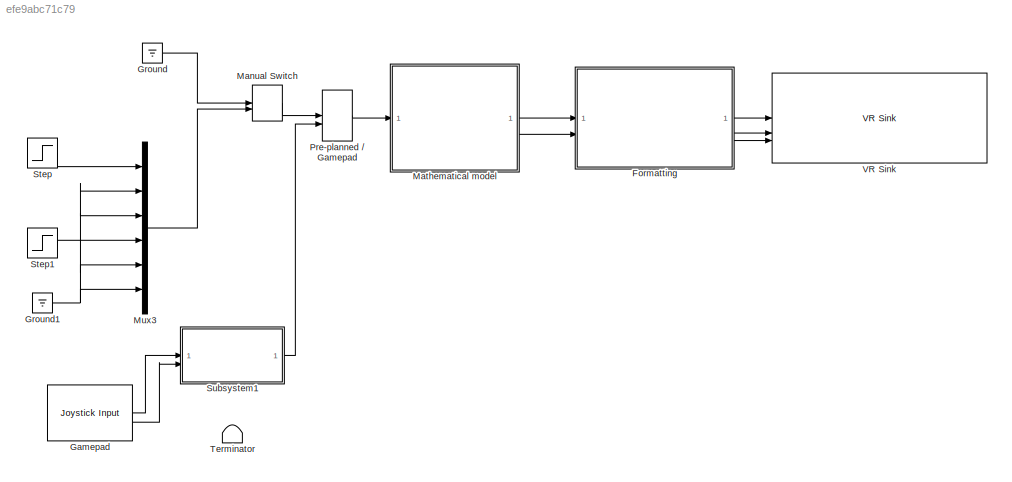
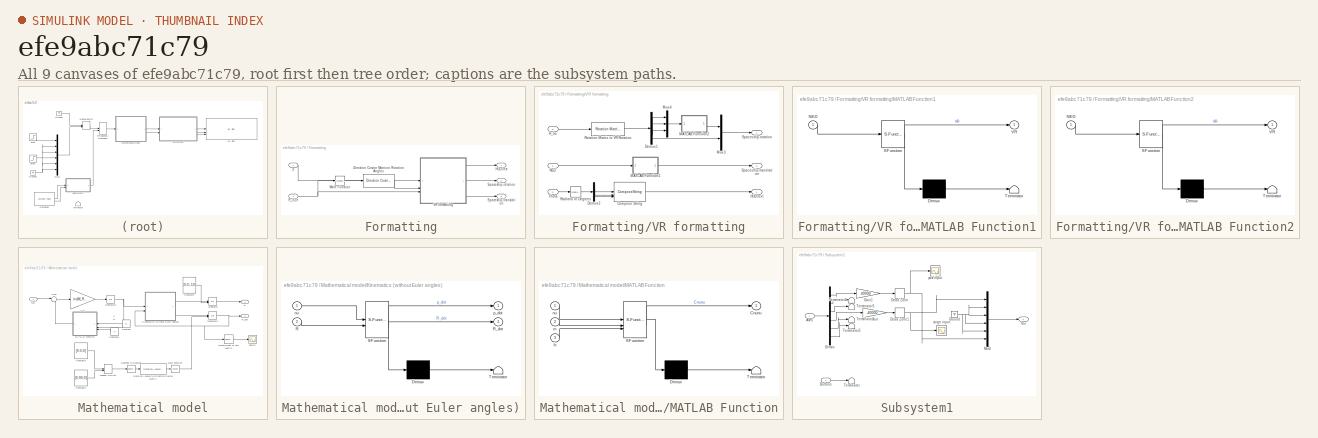
[diagram: thumbnail index - all 9 canvases of the model, root first then tree order]
MODEL slx_efe9abc71c79
KIND model
CONFIG AbsTol = auto
CONFIG EnableMultiTasking = on
CONFIG FixedStep = auto
CONFIG MaxStep = auto
CONFIG MinStep = auto
CONFIG RelTol = 1e-3
CONFIG SampleTimeConstraint = Unconstrained
CONFIG SolverName = ode45
CONFIG StartTime = 0.0
CONFIG StopTime = 120
BLOCK [SubSystem] Formatting
BLOCK [Reference] Formatting/Direction Cosine Matrix to Rotation Angles  REF=sharedtransform/Direction Cosine Matrix
to Rotation Angles
  AttributesFormatString = Rotation Order: %<rotationOrder>
  SourceBlock = sharedtransform/Direction Cosine Matrix\nto Rotation Angles
  SourceType = DCM2Ang
BLOCK [Outport] Formatting/HUD.text
BLOCK [Math] Formatting/Math Function
  Operator = transpose
BLOCK [Inport] Formatting/R_b2e
  Port = 2
BLOCK [Outport] Formatting/Spaceship.rotation
  Port = 2
BLOCK [Outport] Formatting/Spaceship.translation
  Port = 3
BLOCK [SubSystem] Formatting/VR formatting
BLOCK [ComposeString] Formatting/VR formatting/Compose String
  Format = 'Roll    : %7.2f deg\nPitch   : %7.2f deg\nYaw     : %7.2f deg'
BLOCK [Demux] Formatting/VR formatting/Demux1
BLOCK [Demux] Formatting/VR formatting/Demux2
  Outputs = 3
BLOCK [Outport] Formatting/VR formatting/HUD.text
BLOCK [SubSystem] Formatting/VR formatting/MATLAB Function1
  ErrorFcn = Stateflow.Translate.translate
  PermitHierarchicalResolution = ExplicitOnly
  SFBlockType = MATLAB Function
  TreatAsAtomicUnit = on
BLOCK [Demux] Formatting/VR formatting/MATLAB Function1/ Demux 
  Outputs = 1
BLOCK [S-Function] Formatting/VR formatting/MATLAB Function1/ SFunction 
  EnableBusSupport = on
  FunctionName = sf_sfun
  PortCounts = [1 2]
  SFcnIsStateOwnerBlock = off
  SFunctionDeploymentMode = off
  Tag = Stateflow S-Function 5
BLOCK [Terminator] Formatting/VR formatting/MATLAB Function1/ Terminator 
BLOCK [Inport] Formatting/VR formatting/MATLAB Function1/NED
BLOCK [Outport] Formatting/VR formatting/MATLAB Function1/VR
BLOCK [SubSystem] Formatting/VR formatting/MATLAB Function2
  ErrorFcn = Stateflow.Translate.translate
  PermitHierarchicalResolution = ExplicitOnly
  SFBlockType = MATLAB Function
  TreatAsAtomicUnit = on
BLOCK [Demux] Formatting/VR formatting/MATLAB Function2/ Demux 
  Outputs = 1
BLOCK [S-Function] Formatting/VR formatting/MATLAB Function2/ SFunction 
  EnableBusSupport = on
  FunctionName = sf_sfun
  PortCounts = [1 2]
  SFcnIsStateOwnerBlock = off
  SFunctionDeploymentMode = off
  Tag = Stateflow S-Function 6
BLOCK [Terminator] Formatting/VR formatting/MATLAB Function2/ Terminator 
BLOCK [Inport] Formatting/VR formatting/MATLAB Function2/NED
BLOCK [Outport] Formatting/VR formatting/MATLAB Function2/VR
BLOCK [Mux] Formatting/VR formatting/Mux3
  DisplayOption = bar
  Inputs = 2
BLOCK [Mux] Formatting/VR formatting/Mux4
  DisplayOption = bar
  Inputs = 3
BLOCK [Inport] Formatting/VR formatting/NED
BLOCK [Inport] Formatting/VR formatting/R_be
  Port = 3
BLOCK [Reference] Formatting/VR formatting/Radians to Degrees  REF=simulink_extras/Transformations/Radians
to Degrees
  SourceBlock = simulink_extras/Transformations/Radians\nto Degrees
  SourceType = RadiansToDegrees
BLOCK [Reference] Formatting/VR formatting/Rotation Matrix to VR Rotation  REF=vrlib/Utilities/Rotation Matrix
to VR Rotation
  SourceBlock = vrlib/Utilities/Rotation Matrix\nto VR Rotation
  SourceType = Rotation Matrix to VR Rotation
BLOCK [Outport] Formatting/VR formatting/Spaceship.rotation
  Port = 2
BLOCK [Outport] Formatting/VR formatting/Spaceship.translation
  Port = 3
BLOCK [Inport] Formatting/VR formatting/Theta
  Port = 2
BLOCK [Inport] Formatting/p
BLOCK [Reference] Gamepad  REF=vrlib/Joystick Input
  Commented = on
  SourceBlock = vrlib/Joystick Input
  SourceType = Joystick Input
BLOCK [Ground] Ground
BLOCK [Ground] Ground1
BLOCK [ManualSwitch] Manual Switch
  CurrentSetting = 0
  NameLocation = left
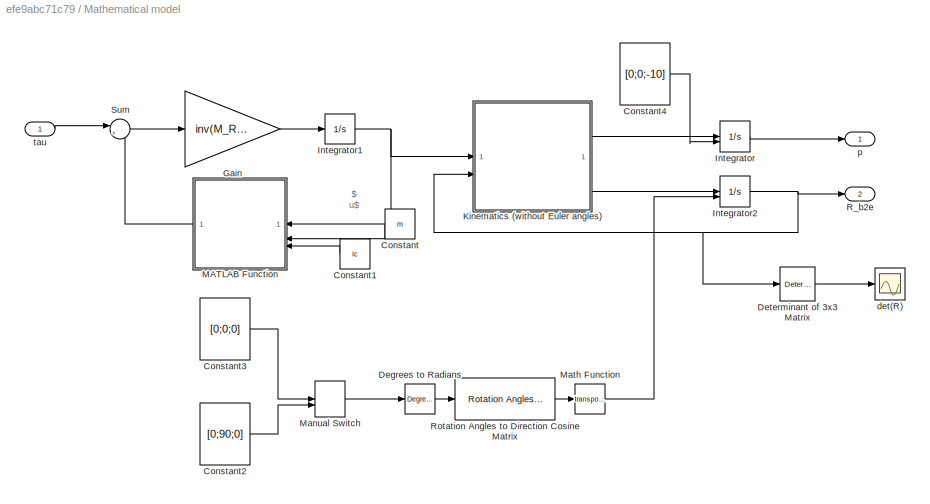
BLOCK [SubSystem] Mathematical model
BLOCK [Constant] Mathematical model/Constant
  Value = m
BLOCK [Constant] Mathematical model/Constant1
  Value = Ic
  VectorParams1D = off
BLOCK [Constant] Mathematical model/Constant2
  Value = [0;90;0]
  VectorParams1D = off
BLOCK [Constant] Mathematical model/Constant3
  Value = [0;0;0]
  VectorParams1D = off
BLOCK [Constant] Mathematical model/Constant4
  Value = [0;0;-10]
  VectorParams1D = off
BLOCK [Reference] Mathematical model/Degrees to Radians  REF=simulink_extras/Transformations/Degrees to
Radians
  SourceBlock = simulink_extras/Transformations/Degrees to\nRadians
  SourceType = DegreesToRadians
BLOCK [Reference] Mathematical model/Determinant of 3x3 Matrix  REF=sharedutil/Determinant of
3x3 Matrix
  LibrarySourceBlock = aerolibutil/Determinant of\n3x3 Matrix
  SourceBlock = sharedutil/Determinant of\n3x3 Matrix
  SourceType = Determinant of 3x3 Matrix
BLOCK [Gain] Mathematical model/Gain
  Gain = inv(M_RB)
  Multiplication = Matrix(K*u) (u vector)
BLOCK [Integrator] Mathematical model/Integrator
  InitialCondition = [0;0;-10]
  InitialConditionSource = external
BLOCK [Integrator] Mathematical model/Integrator1
  InitialCondition = [0;0;0;0;0;0]
BLOCK [Integrator] Mathematical model/Integrator2
  InitialCondition = [0;0;-10;0;pi/2;0]
  InitialConditionSource = external
BLOCK [SubSystem] Mathematical model/Kinematics (without Euler angles)
  ErrorFcn = Stateflow.Translate.translate
  PermitHierarchicalResolution = ExplicitOnly
  SFBlockType = MATLAB Function
  TreatAsAtomicUnit = on
BLOCK [Demux] Mathematical model/Kinematics (without Euler angles)/ Demux 
  Outputs = 1
BLOCK [S-Function] Mathematical model/Kinematics (without Euler angles)/ SFunction 
  EnableBusSupport = on
  FunctionName = sf_sfun
  PortCounts = [2 3]
  SFcnIsStateOwnerBlock = off
  SFunctionDeploymentMode = off
  Tag = Stateflow S-Function 4
BLOCK [Terminator] Mathematical model/Kinematics (without Euler angles)/ Terminator 
BLOCK [Inport] Mathematical model/Kinematics (without Euler angles)/R
  Port = 2
BLOCK [Outport] Mathematical model/Kinematics (without Euler angles)/R_dot
  Port = 2
BLOCK [Inport] Mathematical model/Kinematics (without Euler angles)/nu
BLOCK [Outport] Mathematical model/Kinematics (without Euler angles)/p_dot
BLOCK [SubSystem] Mathematical model/MATLAB Function
  ErrorFcn = Stateflow.Translate.translate
  PermitHierarchicalResolution = ExplicitOnly
  SFBlockType = MATLAB Function
  TreatAsAtomicUnit = on
BLOCK [Demux] Mathematical model/MATLAB Function/ Demux 
  Outputs = 1
BLOCK [S-Function] Mathematical model/MATLAB Function/ SFunction 
  EnableBusSupport = on
  FunctionName = sf_sfun
  PortCounts = [3 2]
  SFcnIsStateOwnerBlock = off
  SFunctionDeploymentMode = off
  Tag = Stateflow S-Function 2
BLOCK [Terminator] Mathematical model/MATLAB Function/ Terminator 
BLOCK [Outport] Mathematical model/MATLAB Function/Cnunu
BLOCK [Inport] Mathematical model/MATLAB Function/Ic
  Port = 3
BLOCK [Inport] Mathematical model/MATLAB Function/m
  Port = 2
BLOCK [Inport] Mathematical model/MATLAB Function/nu
BLOCK [ManualSwitch] Mathematical model/Manual Switch
  CurrentSetting = 0
BLOCK [Math] Mathematical model/Math Function
  Operator = transpose
BLOCK [Outport] Mathematical model/R_b2e
  Port = 2
BLOCK [Reference] Mathematical model/Rotation Angles to Direction Cosine Matrix  REF=sharedtransform/Rotation Angles to
Direction Cosine Matrix
  AttributesFormatString = Rotation Order: %<rotationOrder>
  SourceBlock = sharedtransform/Rotation Angles to\nDirection Cosine Matrix
  SourceType = Ang2DCM
BLOCK [Sum] Mathematical model/Sum
  Inputs = |+-
BLOCK [Scope] Mathematical model/det(R)
  Floating = off
  NumInputPorts = 1
  ScopeSpecificationString = Simulink.scopes.TimeScopeBlockCfg('CurrentConfiguration', extmgr.ConfigurationSet(extmgr.Configuration('Core','General UI',true),extmgr.Configuration('Core','Source UI',true),extmgr.Configuration('Sources','WiredSimulink',true,'DataLoggingVariableName','ScopeData1'),extmgr.Configuration('Visuals','Time Domain',true),extmgr.Configuration('Tools','Plot Navigation',true),extmgr.Configuration('Tools',...<+40ch>
BLOCK [Outport] Mathematical model/p
BLOCK [Inport] Mathematical model/tau
BLOCK [Mux] Mux3
  DisplayOption = bar
  Inputs = 6
BLOCK [ManualSwitch] Pre-planned // Gamepad
  NameLocation = top
BLOCK [Step] Step
  After = 0
  Before = 50000
  SampleTime = 0
BLOCK [Step] Step1
  After = 0
  Before = 20000
  SampleTime = 0
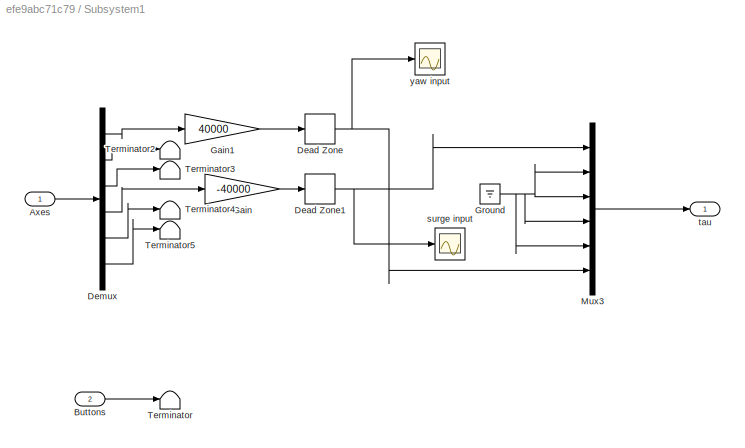
BLOCK [SubSystem] Subsystem1
  Commented = on
BLOCK [Inport] Subsystem1/Axes
BLOCK [Inport] Subsystem1/Buttons
  Port = 2
BLOCK [DeadZone] Subsystem1/Dead Zone
  LowerValue = -200
  UpperValue = 200
BLOCK [DeadZone] Subsystem1/Dead Zone1
  LowerValue = -200
  UpperValue = 200
BLOCK [Demux] Subsystem1/Demux
  Outputs = 6
BLOCK [Gain] Subsystem1/Gain
  Gain = -40000
BLOCK [Gain] Subsystem1/Gain1
  Gain = 40000
BLOCK [Ground] Subsystem1/Ground
BLOCK [Mux] Subsystem1/Mux3
  DisplayOption = bar
  Inputs = 6
BLOCK [Terminator] Subsystem1/Terminator
BLOCK [Terminator] Subsystem1/Terminator2
BLOCK [Terminator] Subsystem1/Terminator3
BLOCK [Terminator] Subsystem1/Terminator4
BLOCK [Terminator] Subsystem1/Terminator5
BLOCK [Scope] Subsystem1/surge input
  Floating = off
  NumInputPorts = 1
  ScopeSpecificationString = Simulink.scopes.TimeScopeBlockCfg('CurrentConfiguration', extmgr.ConfigurationSet(extmgr.Configuration('Core','General UI',true),extmgr.Configuration('Core','Source UI',true),extmgr.Configuration('Sources','WiredSimulink',true,'DataLoggingVariableName','ScopeData1'),extmgr.Configuration('Visuals','Time Domain',true,'SerializedDisplays',{struct('MinYLimReal','-12500.00000','MaxYLimReal','12500.0000...<+1389ch>
BLOCK [Outport] Subsystem1/tau
BLOCK [Scope] Subsystem1/yaw input
  Floating = off
  NumInputPorts = 1
  ScopeSpecificationString = Simulink.scopes.TimeScopeBlockCfg('CurrentConfiguration', extmgr.ConfigurationSet(extmgr.Configuration('Core','General UI',true),extmgr.Configuration('Core','Source UI',true),extmgr.Configuration('Sources','WiredSimulink',true),extmgr.Configuration('Visuals','Time Domain',true,'SerializedDisplays',{struct('MinYLimReal','-12500.00000','MaxYLimReal','12500.00000','YLabelReal','','MinYLimMag','   0.0...<+1355ch>
BLOCK [Terminator] Terminator
  Commented = on
BLOCK [Reference] VR Sink  REF=vrlib/VR Sink
  InstantiateOnLoad = on
  SourceBlock = vrlib/VR Sink
  SourceType = Virtual Reality Sink
ANNOTATION Mathematical model: $\nu$
LINE Formatting/Direction Cosine Matrix to Rotation Angles:1 -> Formatting/VR formatting:2
LINE Formatting/Math Function:1 -> Formatting/Direction Cosine Matrix to Rotation Angles:1
NET Formatting/R_b2e:1 -> Formatting/Math Function:1, Formatting/VR formatting:3
LINE Formatting/VR formatting/Compose String:1 -> Formatting/VR formatting/HUD.text:1
LINE Formatting/VR formatting/Demux1:1 -> Formatting/VR formatting/Mux4:1
LINE Formatting/VR formatting/Demux1:2 -> Formatting/VR formatting/Mux4:2
LINE Formatting/VR formatting/Demux1:3 -> Formatting/VR formatting/Mux4:3
LINE Formatting/VR formatting/Demux1:4 -> Formatting/VR formatting/Mux3:2
LINE Formatting/VR formatting/Demux2:1 -> Formatting/VR formatting/Compose String:1
LINE Formatting/VR formatting/Demux2:2 -> Formatting/VR formatting/Compose String:2
LINE Formatting/VR formatting/Demux2:3 -> Formatting/VR formatting/Compose String:3
LINE Formatting/VR formatting/MATLAB Function1:1 -> Formatting/VR formatting/Spaceship.translation:1
LINE Formatting/VR formatting/MATLAB Function2:1 -> Formatting/VR formatting/Mux3:1
LINE Formatting/VR formatting/Mux3:1 -> Formatting/VR formatting/Spaceship.rotation:1
LINE Formatting/VR formatting/Mux4:1 -> Formatting/VR formatting/MATLAB Function2:1
LINE Formatting/VR formatting/NED:1 -> Formatting/VR formatting/MATLAB Function1:1
LINE Formatting/VR formatting/R_be:1 -> Formatting/VR formatting/Rotation Matrix to VR Rotation:1
LINE Formatting/VR formatting/Radians to Degrees:1 -> Formatting/VR formatting/Demux2:1
LINE Formatting/VR formatting/Rotation Matrix to VR Rotation:1 -> Formatting/VR formatting/Demux1:1
LINE Formatting/VR formatting/Theta:1 -> Formatting/VR formatting/Radians to Degrees:1
LINE Formatting/VR formatting:1 -> Formatting/HUD.text:1
LINE Formatting/VR formatting:2 -> Formatting/Spaceship.rotation:1
LINE Formatting/VR formatting:3 -> Formatting/Spaceship.translation:1
LINE Formatting/p:1 -> Formatting/VR formatting:1
LINE Formatting:1 -> VR Sink:1
LINE Formatting:2 -> VR Sink:2
LINE Formatting:3 -> VR Sink:3
LINE Gamepad:1 -> Subsystem1:1
LINE Gamepad:2 -> Subsystem1:2
NET Ground1:1 -> Mux3:2, Mux3:3, Mux3:5, Mux3:6
LINE Ground:1 -> Manual Switch:1
LINE Manual Switch:1 -> Pre-planned // Gamepad:1
LINE Mathematical model/Constant1:1 -> Mathematical model/MATLAB Function:3
LINE Mathematical model/Constant2:1 -> Mathematical model/Manual Switch:2
LINE Mathematical model/Constant3:1 -> Mathematical model/Manual Switch:1
LINE Mathematical model/Constant4:1 -> Mathematical model/Integrator:2
LINE Mathematical model/Constant:1 -> Mathematical model/MATLAB Function:2
LINE Mathematical model/Degrees to Radians:1 -> Mathematical model/Rotation Angles to Direction Cosine Matrix:1
LINE Mathematical model/Determinant of 3x3 Matrix:1 -> Mathematical model/det(R):1
LINE Mathematical model/Gain:1 -> Mathematical model/Integrator1:1
NET Mathematical model/Integrator1:1 -> Mathematical model/Kinematics (without Euler angles):1, Mathematical model/MATLAB Function:1
NET Mathematical model/Integrator2:1 -> Mathematical model/Determinant of 3x3 Matrix:1, Mathematical model/Kinematics (without Euler angles):2, Mathematical model/R_b2e:1
LINE Mathematical model/Integrator:1 -> Mathematical model/p:1
LINE Mathematical model/Kinematics (without Euler angles):1 -> Mathematical model/Integrator:1
LINE Mathematical model/Kinematics (without Euler angles):2 -> Mathematical model/Integrator2:1
LINE Mathematical model/MATLAB Function:1 -> Mathematical model/Sum:2
LINE Mathematical model/Manual Switch:1 -> Mathematical model/Degrees to Radians:1
LINE Mathematical model/Math Function:1 -> Mathematical model/Integrator2:2
LINE Mathematical model/Rotation Angles to Direction Cosine Matrix:1 -> Mathematical model/Math Function:1
LINE Mathematical model/Sum:1 -> Mathematical model/Gain:1
LINE Mathematical model/tau:1 -> Mathematical model/Sum:1
LINE Mathematical model:1 -> Formatting:1
LINE Mathematical model:2 -> Formatting:2
LINE Mux3:1 -> Manual Switch:2
LINE Pre-planned // Gamepad:1 -> Mathematical model:1
LINE Step1:1 -> Mux3:4
LINE Step:1 -> Mux3:1
LINE Subsystem1/Axes:1 -> Subsystem1/Demux:1
LINE Subsystem1/Buttons:1 -> Subsystem1/Terminator:1
NET Subsystem1/Dead Zone1:1 -> Subsystem1/Mux3:1, Subsystem1/surge input:1
NET Subsystem1/Dead Zone:1 -> Subsystem1/Mux3:6, Subsystem1/yaw input:1
LINE Subsystem1/Demux:1 -> Subsystem1/Gain1:1
LINE Subsystem1/Demux:2 -> Subsystem1/Terminator2:1
LINE Subsystem1/Demux:3 -> Subsystem1/Terminator3:1
LINE Subsystem1/Demux:4 -> Subsystem1/Gain:1
LINE Subsystem1/Demux:5 -> Subsystem1/Terminator4:1
LINE Subsystem1/Demux:6 -> Subsystem1/Terminator5:1
LINE Subsystem1/Gain1:1 -> Subsystem1/Dead Zone:1
LINE Subsystem1/Gain:1 -> Subsystem1/Dead Zone1:1
NET Subsystem1/Ground:1 -> Subsystem1/Mux3:2, Subsystem1/Mux3:3, Subsystem1/Mux3:4, Subsystem1/Mux3:5
LINE Subsystem1/Mux3:1 -> Subsystem1/tau:1
LINE Subsystem1:1 -> Pre-planned // Gamepad:2
note: NET lines group one-source signal fan-out (src -> all destinations, sorted); 1:1 wires keep LINE
CHART Mathematical model/MATLAB Function states=1 transitions=1
  STATE_LABEL 'eML_blk_kernel()'
  STATE_LABEL 'SCRIPT:\nfunction Cnunu = fcn(nu,m,Ic)\n\nv = nu(1:3);  % linear velocities (expressed in the body frame)\nomega = nu(4:6); % angular velocities (expressed in the body frame)\n\nCnunu = [ cross(omega,m*v) ; -cross(Ic*omega,omega) ];\n\n'
CHART Mathematical model/Kinematics (without Euler angles) states=1 transitions=1
  STATE_LABEL 'eML_blk_kernel()'
  STATE_LABEL 'SCRIPT:\nfunction [p_dot,R_dot] = fcn(nu,R)\n\n% R is short for R_b2e\n\n% extraction linear and angular velocity vectors\nv = nu(1:3);\nomega = nu(4:6);\n\n% extraction individual omegas\nomega_x = omega(1);\nomega_y = omega(2);\nomega_z = omega(3);\n\n% definition\nOmega_cross = [       0  ,  -omega_z  ,   omega_y   ;\n                omega_z  ,         0  ,  -omega_x   ;\n               -omega_y  ,   omega_x  ,...<+85ch>'
CHART Formatting/VR formatting/MATLAB Function1 states=1 transitions=1
  STATE_LABEL 'eML_blk_kernel()'
  STATE_LABEL 'SCRIPT:\nfunction VR = NED2VR(NED)\n\nx = NED(1); % north\ny = NED(2); % east \nz = NED(3); % down\n\nVR = [ -y ; -z ; x ];\n'
CHART Formatting/VR formatting/MATLAB Function2 states=1 transitions=1
  STATE_LABEL 'eML_blk_kernel()'
  STATE_LABEL 'SCRIPT:\nfunction VR = NED2VR(NED)\n\nx = NED(1); % north\ny = NED(2); % east \nz = NED(3); % down\n\nVR = [ -y ; -z ; x ];\n'
CHART  states=0 transitions=0
CHART  states=0 transitions=0
CHART  states=0 transitions=0
CHART  states=0 transitions=0
